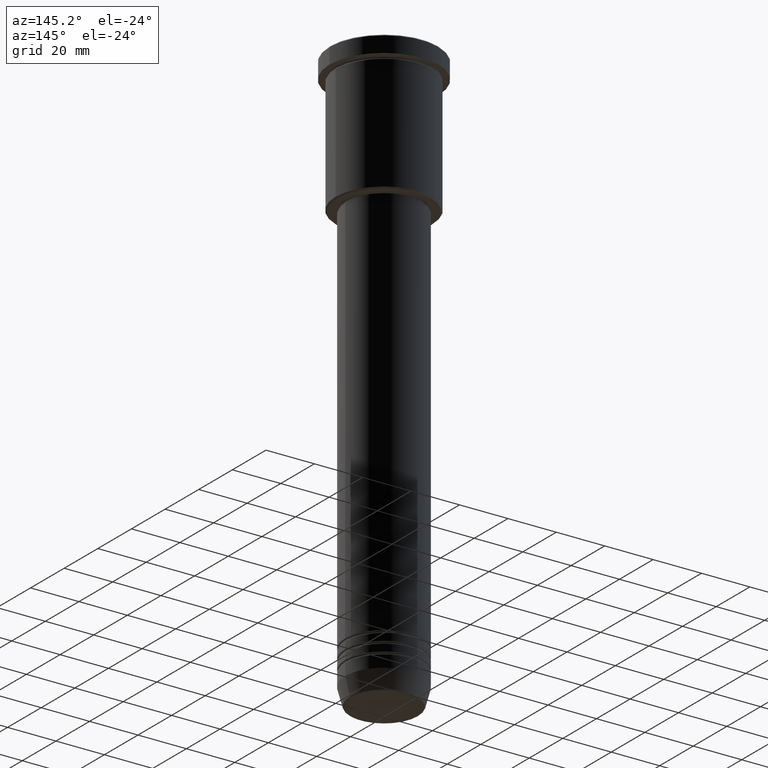
[diagram: clean part render]
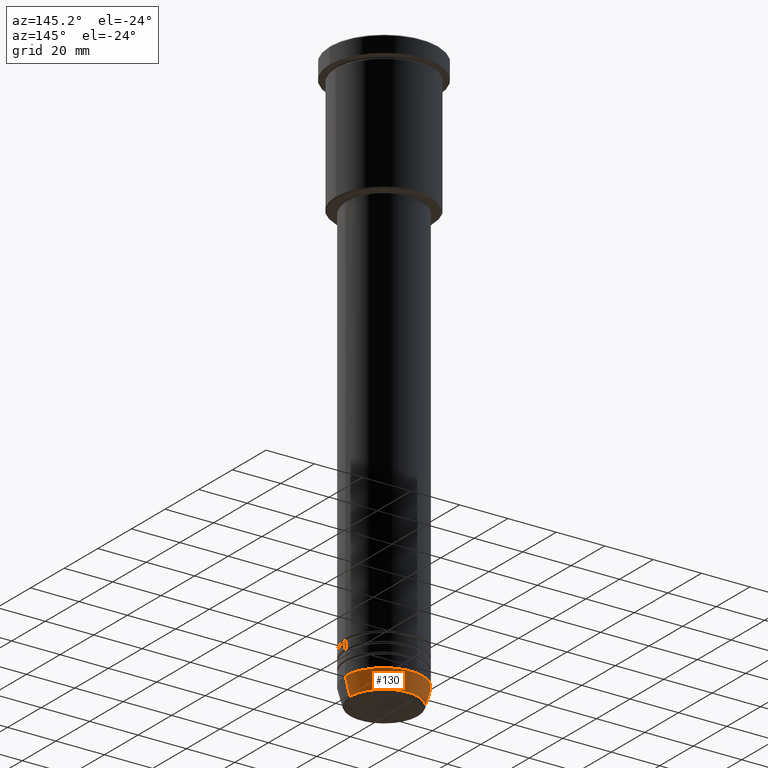
[diagram: same view with one face highlighted and labeled with its STEP entity id]
A machine part, auxiliary view. The second image highlights one B-rep face of the part: STEP entity #130.
In plain terms, the highlighted conical surface has half-angle 15 deg.
Its self-contained STEP definition (entity closure, byte-faithful):
#5 = LINE ( 'NONE', #575, #643 ) ;
#28 = AXIS2_PLACEMENT_3D ( 'NONE', #1132, #66, #712 ) ;
#47 = VECTOR ( 'NONE', #244, 1000.000000000000000 ) ;
#66 = DIRECTION ( 'NONE',  ( -0.000000000000000000, -0.000000000000000000, 1.000000000000000000 ) ) ;
#68 = ORIENTED_EDGE ( 'NONE', *, *, #963, .T. ) ;
#81 = CIRCLE ( 'NONE', #28, 16.00000000000000000 ) ;
#89 = DIRECTION ( 'NONE',  ( 1.000000000000000000, 0.000000000000000000, 0.000000000000000000 ) ) ;
#91 = DIRECTION ( 'NONE',  ( -0.000000000000000000, -0.000000000000000000, 1.000000000000000000 ) ) ;
#130 = ADVANCED_FACE ( 'NONE', ( #903 ), #698, .T. ) ;
#155 = LINE ( 'NONE', #890, #47 ) ;
#157 = AXIS2_PLACEMENT_3D ( 'NONE', #1171, #552, #89 ) ;
#244 = DIRECTION ( 'NONE',  ( -0.2588190451025213501, 3.169619151431772337E-17, 0.9659258262890680902 ) ) ;
#381 = CARTESIAN_POINT ( 'NONE',  ( 14.08968047592163941, 0.000000000000000000, -239.6294095225512422 ) ) ;
#426 = ORIENTED_EDGE ( 'NONE', *, *, #590, .T. ) ;
#552 = DIRECTION ( 'NONE',  ( -0.000000000000000000, -0.000000000000000000, 1.000000000000000000 ) ) ;
#575 = CARTESIAN_POINT ( 'NONE',  ( 16.00000000000000000, 0.000000000000000000, -232.5000000000000000 ) ) ;
#590 = EDGE_CURVE ( 'NONE', #721, #1012, #901, .T. ) ;
#610 = ORIENTED_EDGE ( 'NONE', *, *, #843, .F. ) ;
#635 = CARTESIAN_POINT ( 'NONE',  ( -16.00000000000000000, 1.959434878635765131E-15, -232.5000000000000000 ) ) ;
#642 = DIRECTION ( 'NONE',  ( 0.2588190451025213501, 0.000000000000000000, 0.9659258262890680902 ) ) ;
#643 = VECTOR ( 'NONE', #642, 1000.000000000000000 ) ;
#666 = ORIENTED_EDGE ( 'NONE', *, *, #1072, .F. ) ;
#698 = CONICAL_SURFACE ( 'NONE', #157, 16.00000000000000000, 0.2617993877991500740 ) ;
#712 = DIRECTION ( 'NONE',  ( 1.000000000000000000, 0.000000000000000000, 0.000000000000000000 ) ) ;
#721 = VERTEX_POINT ( 'NONE', #381 ) ;
#806 = VERTEX_POINT ( 'NONE', #1146 ) ;
#843 = EDGE_CURVE ( 'NONE', #806, #932, #81, .T. ) ;
#864 = AXIS2_PLACEMENT_3D ( 'NONE', #1003, #91, #1102 ) ;
#890 = CARTESIAN_POINT ( 'NONE',  ( -16.00000000000000000, 1.959434878635765131E-15, -232.5000000000000000 ) ) ;
#891 = EDGE_LOOP ( 'NONE', ( #426, #68, #610, #666 ) ) ;
#901 = CIRCLE ( 'NONE', #864, 14.08968047592163941 ) ;
#903 = FACE_OUTER_BOUND ( 'NONE', #891, .T. ) ;
#932 = VERTEX_POINT ( 'NONE', #635 ) ;
#963 = EDGE_CURVE ( 'NONE', #1012, #932, #155, .T. ) ;
#1003 = CARTESIAN_POINT ( 'NONE',  ( 0.000000000000000000, 0.000000000000000000, -239.6294095225512422 ) ) ;
#1012 = VERTEX_POINT ( 'NONE', #1107 ) ;
#1072 = EDGE_CURVE ( 'NONE', #721, #806, #5, .T. ) ;
#1102 = DIRECTION ( 'NONE',  ( 1.000000000000000000, 0.000000000000000000, 0.000000000000000000 ) ) ;
#1107 = CARTESIAN_POINT ( 'NONE',  ( -14.08968047592163941, 1.842461544110202058E-15, -239.6294095225512422 ) ) ;
#1132 = CARTESIAN_POINT ( 'NONE',  ( 0.000000000000000000, 0.000000000000000000, -232.5000000000000000 ) ) ;
#1146 = CARTESIAN_POINT ( 'NONE',  ( 16.00000000000000000, 0.000000000000000000, -232.5000000000000000 ) ) ;
#1171 = CARTESIAN_POINT ( 'NONE',  ( 0.000000000000000000, 0.000000000000000000, -232.5000000000000000 ) ) ;